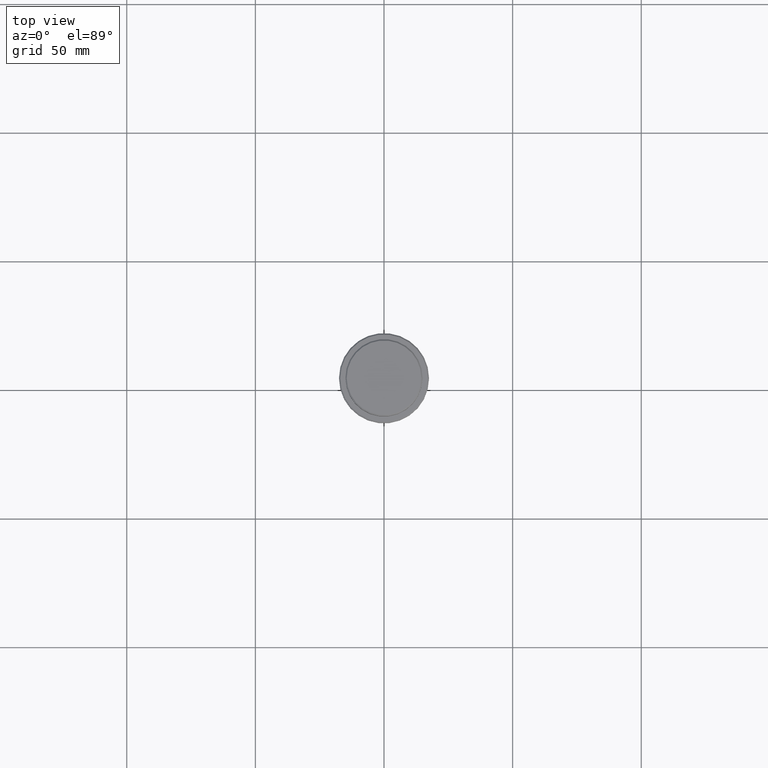
[diagram: clean part render]
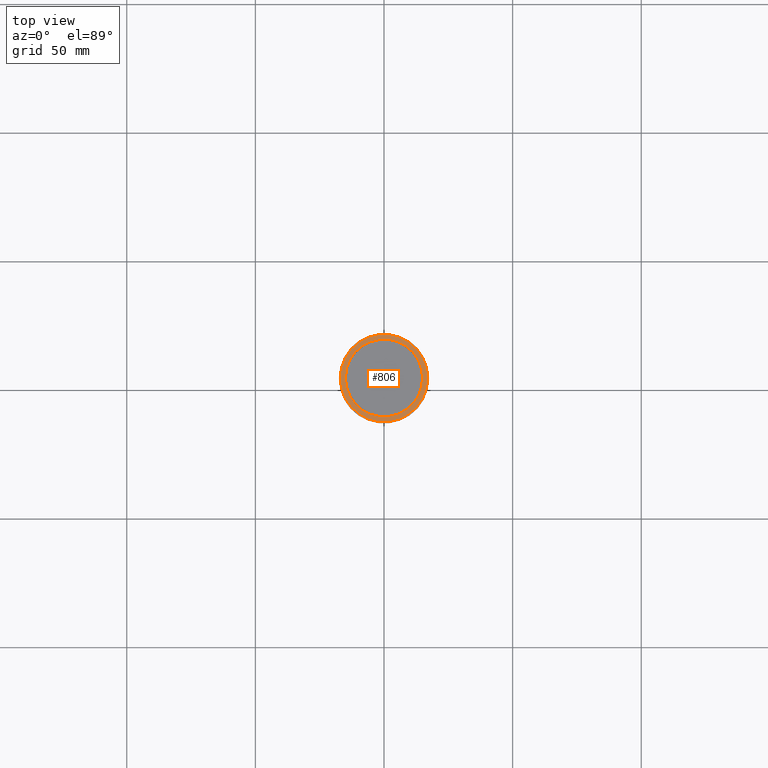
[diagram: same view with one face highlighted and labeled with its STEP entity id]
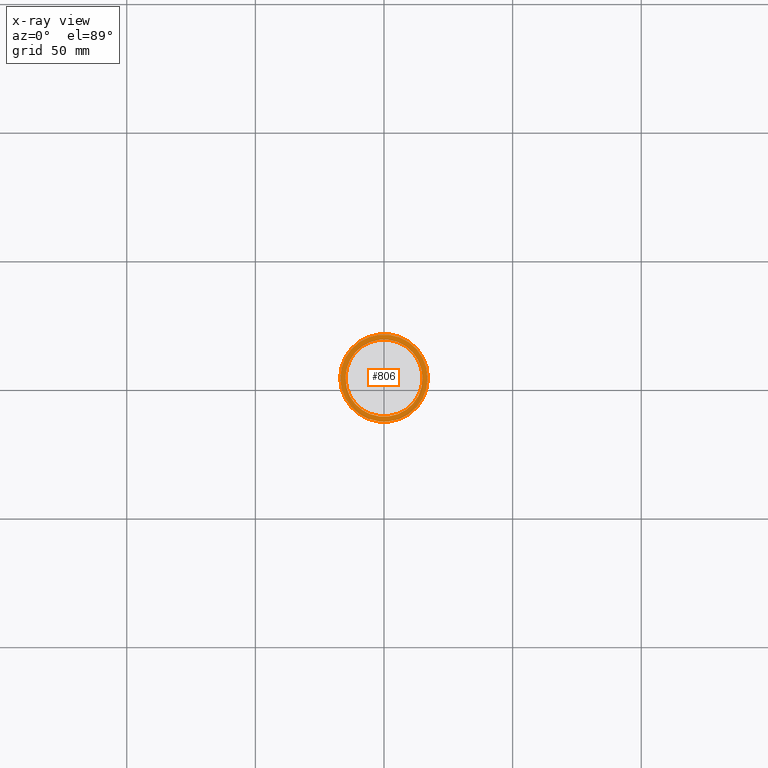
[diagram: x-ray of the same camera — body ghosted, the highlighted face saturated]
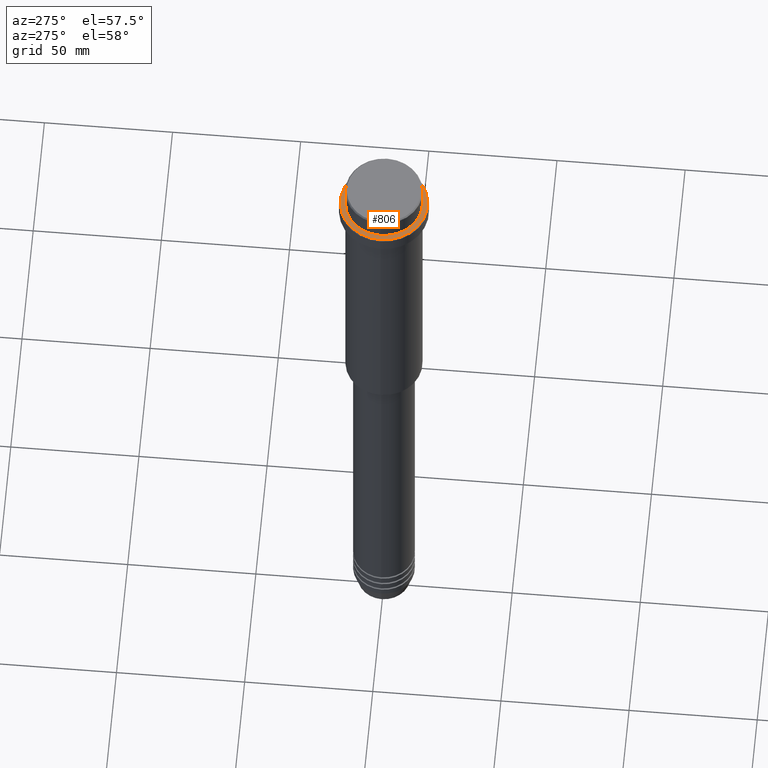
[diagram: same view with one face highlighted and labeled with its STEP entity id]
A machine part, top view. The second image highlights one B-rep face of the part: STEP entity #806.
The next image is the same camera in x-ray: the body ghosted, the highlighted face saturated — about 0% of this face is hidden behind the body in this view.
A second angle (auxiliary view) of the same face is appended — the face is thin or edge-on in the first view.
In plain terms, the highlighted planar face has unit normal (0, -0, 1).
Its self-contained STEP definition (entity closure, byte-faithful):
#69 = ORIENTED_EDGE ( 'NONE', *, *, #1058, .T. ) ;
#70 = CARTESIAN_POINT ( 'NONE',  ( 0.000000000000000000, 0.000000000000000000, -9.000000000000000000 ) ) ;
#81 = AXIS2_PLACEMENT_3D ( 'NONE', #70, #1383, #155 ) ;
#95 = ORIENTED_EDGE ( 'NONE', *, *, #929, .T. ) ;
#155 = DIRECTION ( 'NONE',  ( 1.000000000000000000, 0.000000000000000000, 0.000000000000000000 ) ) ;
#177 = FACE_BOUND ( 'NONE', #921, .T. ) ;
#182 = CARTESIAN_POINT ( 'NONE',  ( 0.000000000000000000, 14.49999999999999467, -9.000000000000000000 ) ) ;
#190 = CIRCLE ( 'NONE', #1356, 17.00000000000001421 ) ;
#216 = VERTEX_POINT ( 'NONE', #917 ) ;
#232 = CARTESIAN_POINT ( 'NONE',  ( 0.000000000000000000, 0.000000000000000000, -9.000000000000000000 ) ) ;
#237 = AXIS2_PLACEMENT_3D ( 'NONE', #232, #433, #1314 ) ;
#240 = EDGE_CURVE ( 'NONE', #216, #434, #694, .T. ) ;
#305 = CARTESIAN_POINT ( 'NONE',  ( -14.99999999999999289, 1.836970198721028800E-15, -9.000000000000000000 ) ) ;
#366 = AXIS2_PLACEMENT_3D ( 'NONE', #601, #1137, #594 ) ;
#367 = VERTEX_POINT ( 'NONE', #305 ) ;
#371 = DIRECTION ( 'NONE',  ( -0.000000000000000000, -0.000000000000000000, 1.000000000000000000 ) ) ;
#415 = FACE_OUTER_BOUND ( 'NONE', #1008, .T. ) ;
#433 = DIRECTION ( 'NONE',  ( 0.000000000000000000, 0.000000000000000000, -1.000000000000000000 ) ) ;
#434 = VERTEX_POINT ( 'NONE', #1324 ) ;
#523 = EDGE_CURVE ( 'NONE', #584, #367, #894, .T. ) ;
#584 = VERTEX_POINT ( 'NONE', #1233 ) ;
#594 = DIRECTION ( 'NONE',  ( 1.000000000000000000, 0.000000000000000000, 0.000000000000000000 ) ) ;
#601 = CARTESIAN_POINT ( 'NONE',  ( 0.000000000000000000, 0.000000000000000000, -9.000000000000000000 ) ) ;
#640 = DIRECTION ( 'NONE',  ( 1.000000000000000000, 0.000000000000000000, 0.000000000000000000 ) ) ;
#659 = CIRCLE ( 'NONE', #237, 14.99999999999999289 ) ;
#694 = CIRCLE ( 'NONE', #366, 17.00000000000001421 ) ;
#743 = DIRECTION ( 'NONE',  ( 0.000000000000000000, -0.000000000000000000, 1.000000000000000000 ) ) ;
#806 = ADVANCED_FACE ( 'NONE', ( #415, #177 ), #1167, .T. ) ;
#888 = ORIENTED_EDGE ( 'NONE', *, *, #240, .T. ) ;
#894 = CIRCLE ( 'NONE', #81, 14.99999999999999289 ) ;
#917 = CARTESIAN_POINT ( 'NONE',  ( 17.00000000000001421, 2.112515728529185250E-15, -9.000000000000000000 ) ) ;
#918 = ORIENTED_EDGE ( 'NONE', *, *, #523, .T. ) ;
#921 = EDGE_LOOP ( 'NONE', ( #918, #95 ) ) ;
#929 = EDGE_CURVE ( 'NONE', #367, #584, #659, .T. ) ;
#1008 = EDGE_LOOP ( 'NONE', ( #69, #888 ) ) ;
#1058 = EDGE_CURVE ( 'NONE', #434, #216, #190, .T. ) ;
#1137 = DIRECTION ( 'NONE',  ( -0.000000000000000000, -0.000000000000000000, 1.000000000000000000 ) ) ;
#1167 = PLANE ( 'NONE',  #1320 ) ;
#1227 = CARTESIAN_POINT ( 'NONE',  ( 0.000000000000000000, 0.000000000000000000, -9.000000000000000000 ) ) ;
#1233 = CARTESIAN_POINT ( 'NONE',  ( 14.99999999999999289, 0.000000000000000000, -9.000000000000000000 ) ) ;
#1314 = DIRECTION ( 'NONE',  ( 1.000000000000000000, 0.000000000000000000, 0.000000000000000000 ) ) ;
#1320 = AXIS2_PLACEMENT_3D ( 'NONE', #182, #743, #640 ) ;
#1324 = CARTESIAN_POINT ( 'NONE',  ( -17.00000000000001421, 0.000000000000000000, -9.000000000000000000 ) ) ;
#1344 = DIRECTION ( 'NONE',  ( 1.000000000000000000, 0.000000000000000000, 0.000000000000000000 ) ) ;
#1356 = AXIS2_PLACEMENT_3D ( 'NONE', #1227, #371, #1344 ) ;
#1383 = DIRECTION ( 'NONE',  ( 0.000000000000000000, 0.000000000000000000, -1.000000000000000000 ) ) ;